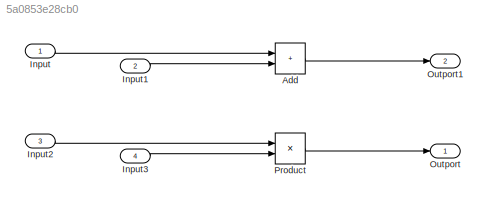
MODEL slx_5a0853e28cb0
KIND model
CONFIG AbsTol = auto
CONFIG EnableMultiTasking = off
CONFIG FixedStep = auto
CONFIG MaxStep = auto
CONFIG MinStep = auto
CONFIG RelTol = 1e-3
CONFIG SampleTimeConstraint = Unconstrained
CONFIG SolverName = FixedStepAuto
CONFIG StartTime = 0.0
CONFIG StopTime = 10.0
BLOCK [Sum] Add
  IconShape = rectangular
  Ports = [2, 1]
BLOCK [Inport] Input
BLOCK [Inport] Input1
  Port = 2
BLOCK [Inport] Input2
  Port = 3
BLOCK [Inport] Input3
  Port = 4
BLOCK [Outport] Outport
BLOCK [Outport] Outport1
  Port = 2
BLOCK [Product] Product
  Ports = [2, 1]
LINE Add:1 -> Outport1:1
LINE Input1:1 -> Add:2
LINE Input2:1 -> Product:1
LINE Input3:1 -> Product:2
LINE Input:1 -> Add:1
LINE Product:1 -> Outport:1
